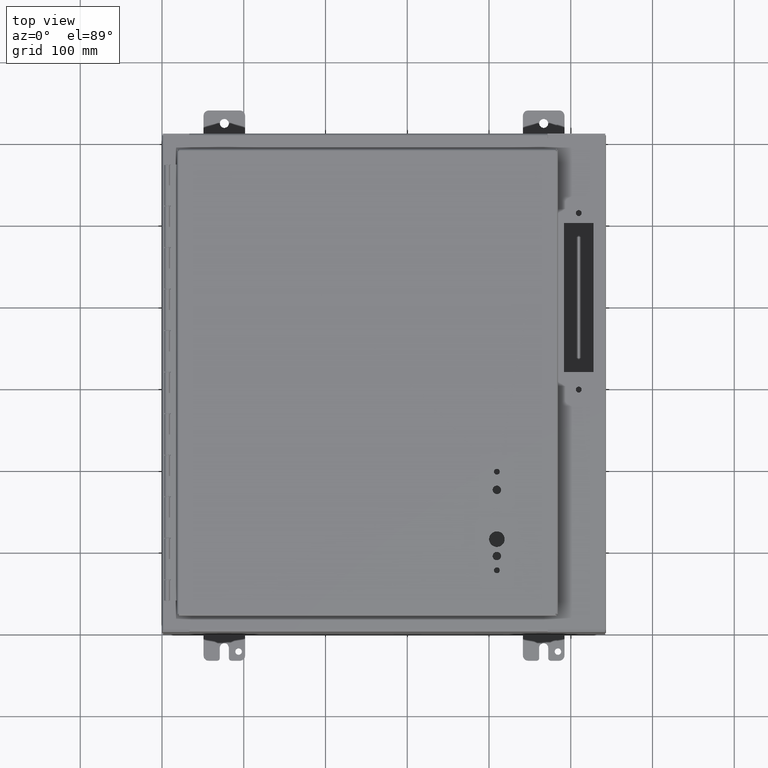
[diagram: clean part render]
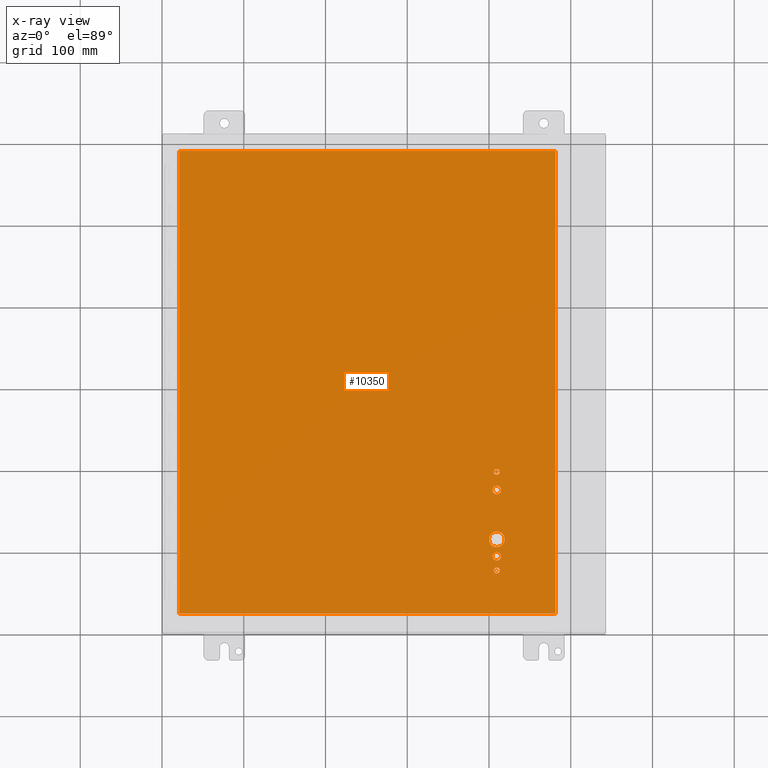
[diagram: x-ray — body ghosted, one internal face saturated and labeled with its STEP entity id]
A machine part, top view, then the same camera in x-ray: the body is ghosted and one INTERNAL B-rep face — a face not visible from any outside direction — is saturated and labeled: STEP entity #10350.
In plain terms, the highlighted planar face has unit normal (-0, 0, 1).
Its self-contained STEP definition (entity closure, byte-faithful):
#307=FACE_BOUND($,#1963,.T.);
#308=FACE_BOUND($,#1964,.T.);
#309=FACE_BOUND($,#1965,.T.);
#310=FACE_BOUND($,#1966,.T.);
#311=FACE_BOUND($,#1967,.T.);
#312=FACE_BOUND($,#1968,.T.);
#631=CIRCLE($,#11175,0.375);
#633=CIRCLE($,#11178,0.203);
#635=CIRCLE($,#11181,0.203);
#637=CIRCLE($,#11184,0.1405);
#639=CIRCLE($,#11187,0.1405);
#1963=EDGE_LOOP($,(#8713));
#1964=EDGE_LOOP($,(#8714));
#1965=EDGE_LOOP($,(#8715));
#1966=EDGE_LOOP($,(#8716));
#1967=EDGE_LOOP($,(#8717));
#1968=EDGE_LOOP($,(#8718,#8719,#8720,#8721));
#2898=LINE($,#17013,#3863);
#2913=LINE($,#17113,#3878);
#2921=LINE($,#17198,#3886);
#2935=LINE($,#17295,#3900);
#3863=VECTOR($,#13701,22.2895);
#3878=VECTOR($,#13730,18.13325);
#3886=VECTOR($,#13748,22.2895);
#3900=VECTOR($,#13776,18.13325);
#4756=VERTEX_POINT($,#16848);
#4758=VERTEX_POINT($,#16853);
#4760=VERTEX_POINT($,#16858);
#4762=VERTEX_POINT($,#16863);
#4764=VERTEX_POINT($,#16868);
#4789=VERTEX_POINT($,#16966);
#4790=VERTEX_POINT($,#16996);
#4800=VERTEX_POINT($,#17096);
#4805=VERTEX_POINT($,#17185);
#6043=EDGE_CURVE($,#4756,#4756,#631,.T.);
#6045=EDGE_CURVE($,#4758,#4758,#633,.T.);
#6047=EDGE_CURVE($,#4760,#4760,#635,.T.);
#6049=EDGE_CURVE($,#4762,#4762,#637,.T.);
#6051=EDGE_CURVE($,#4764,#4764,#639,.T.);
#6091=EDGE_CURVE($,#4790,#4789,#2898,.T.);
#6110=EDGE_CURVE($,#4800,#4790,#2913,.T.);
#6122=EDGE_CURVE($,#4805,#4800,#2921,.T.);
#6140=EDGE_CURVE($,#4789,#4805,#2935,.T.);
#8713=ORIENTED_EDGE($,*,*,#6043,.T.);
#8714=ORIENTED_EDGE($,*,*,#6045,.T.);
#8715=ORIENTED_EDGE($,*,*,#6047,.T.);
#8716=ORIENTED_EDGE($,*,*,#6049,.T.);
#8717=ORIENTED_EDGE($,*,*,#6051,.T.);
#8718=ORIENTED_EDGE($,*,*,#6091,.T.);
#8719=ORIENTED_EDGE($,*,*,#6140,.T.);
#8720=ORIENTED_EDGE($,*,*,#6122,.T.);
#8721=ORIENTED_EDGE($,*,*,#6110,.T.);
#9375=PLANE($,#11222);
#10350=ADVANCED_FACE($,(#307,#308,#309,#310,#311,#312),#9375,.F.);
#11175=AXIS2_PLACEMENT_3D($,#16849,#13613,#13614);
#11178=AXIS2_PLACEMENT_3D($,#16854,#13619,#13620);
#11181=AXIS2_PLACEMENT_3D($,#16859,#13625,#13626);
#11184=AXIS2_PLACEMENT_3D($,#16864,#13631,#13632);
#11187=AXIS2_PLACEMENT_3D($,#16869,#13637,#13638);
#11222=AXIS2_PLACEMENT_3D($,#17297,#13779,#13780);
#13613=DIRECTION('center_axis',(0.,0.,1.));
#13614=DIRECTION('ref_axis',(-1.,0.,0.));
#13619=DIRECTION('center_axis',(0.,0.,1.));
#13620=DIRECTION('ref_axis',(-1.,0.,0.));
#13625=DIRECTION('center_axis',(0.,0.,1.));
#13626=DIRECTION('ref_axis',(-1.,0.,0.));
#13631=DIRECTION('center_axis',(0.,0.,1.));
#13632=DIRECTION('ref_axis',(-1.,0.,0.));
#13637=DIRECTION('center_axis',(0.,0.,1.));
#13638=DIRECTION('ref_axis',(-1.,0.,0.));
#13701=DIRECTION($,(0.,-1.,0.));
#13730=DIRECTION($,(1.,0.,0.));
#13748=DIRECTION($,(-3.05915008958747E-016,1.,0.));
#13776=DIRECTION($,(-1.,0.,0.));
#13779=DIRECTION('center_axis',(0.,0.,1.));
#13780=DIRECTION('ref_axis',(1.,0.,0.));
#16848=CARTESIAN_POINT('',(15.78075,3.688,0.));
#16849=CARTESIAN_POINT('Origin',(15.40575,3.688,0.));
#16853=CARTESIAN_POINT('',(15.60875,6.063,0.));
#16854=CARTESIAN_POINT('Origin',(15.40575,6.063,0.));
#16858=CARTESIAN_POINT('',(15.60875,2.87500000000535,0.));
#16859=CARTESIAN_POINT('Origin',(15.40575,2.87500000000535,0.));
#16863=CARTESIAN_POINT('',(15.54625,6.938,0.));
#16864=CARTESIAN_POINT('Origin',(15.40575,6.938,0.));
#16868=CARTESIAN_POINT('',(15.54625,2.188,0.));
#16869=CARTESIAN_POINT('Origin',(15.40575,2.188,0.));
#16966=CARTESIAN_POINT('',(18.2385,0.10525,0.));
#16996=CARTESIAN_POINT('',(18.2385,22.39475,0.));
#17013=CARTESIAN_POINT($,(18.2385,5.677625,0.));
#17096=CARTESIAN_POINT('',(0.105249999999993,22.39475,0.));
#17113=CARTESIAN_POINT($,(13.7051875,22.39475,0.));
#17185=CARTESIAN_POINT('',(0.10525,0.10525,0.));
#17198=CARTESIAN_POINT($,(0.105249999999994,16.822375,0.));
#17295=CARTESIAN_POINT($,(4.6385625,0.10525,0.));
#17297=CARTESIAN_POINT('Origin',(9.171875,11.25,0.));